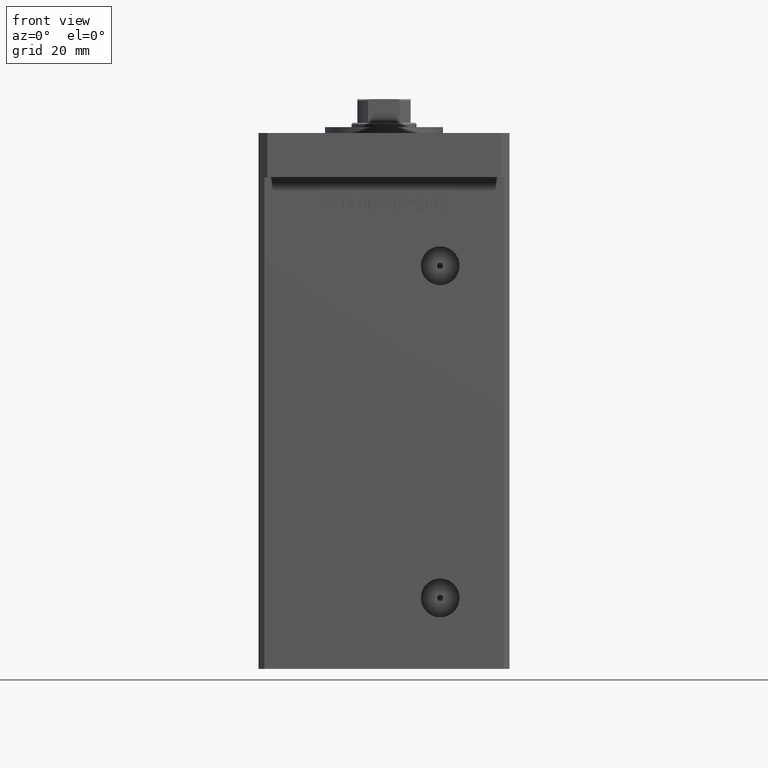
[diagram: clean part render]
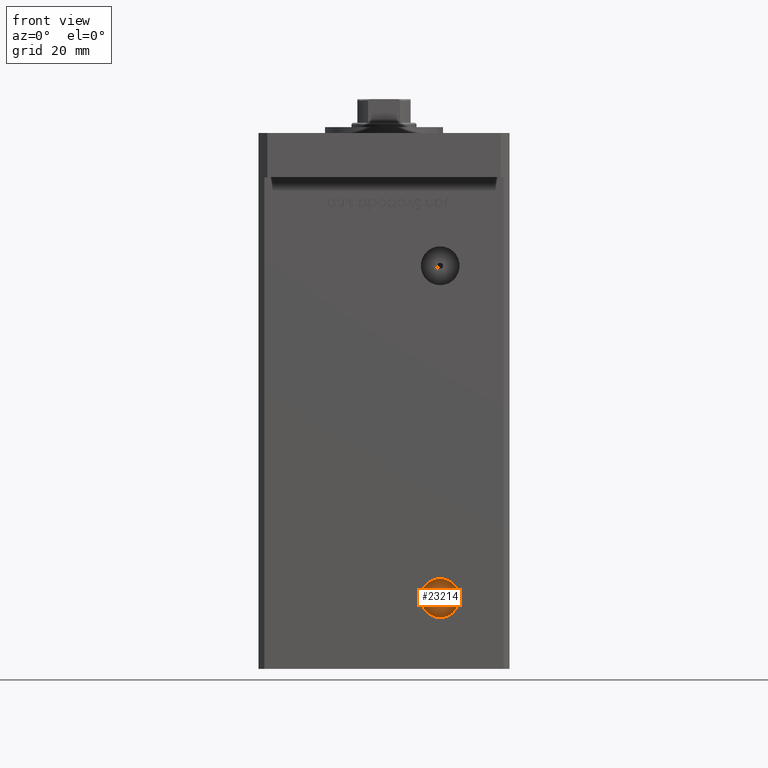
[diagram: same view with one face highlighted and labeled with its STEP entity id]
A machine part, front view. The second image highlights one B-rep face of the part: STEP entity #23214.
In plain terms, the highlighted planar face has unit normal (0, -1, 0).
Its self-contained STEP definition (entity closure, byte-faithful):
#127 = EDGE_CURVE ( 'NONE', #18848, #44645, #1581, .T. ) ;
#1581 = CIRCLE ( 'NONE', #35387, 6.579999999999998295 ) ;
#3382 = DIRECTION ( 'NONE',  ( 0.000000000000000000, -1.000000000000000000, 0.000000000000000000 ) ) ;
#3930 = DIRECTION ( 'NONE',  ( 0.000000000000000000, 0.000000000000000000, -1.000000000000000000 ) ) ;
#4687 = DIRECTION ( 'NONE',  ( 0.000000000000000000, 0.000000000000000000, -1.000000000000000000 ) ) ;
#8213 = ORIENTED_EDGE ( 'NONE', *, *, #45217, .T. ) ;
#8367 = CARTESIAN_POINT ( 'NONE',  ( 18.99999999999998934, -24.50000000000000711, 9.000000000000007105 ) ) ;
#8494 = CARTESIAN_POINT ( 'NONE',  ( 18.99999999999998934, -24.50000000000000711, 9.000000000000007105 ) ) ;
#9583 = DIRECTION ( 'NONE',  ( 0.000000000000000000, -1.000000000000000000, 0.000000000000000000 ) ) ;
#16820 = AXIS2_PLACEMENT_3D ( 'NONE', #8494, #25005, #4687 ) ;
#17711 = DIRECTION ( 'NONE',  ( 0.000000000000000000, 0.000000000000000000, -1.000000000000000000 ) ) ;
#17991 = AXIS2_PLACEMENT_3D ( 'NONE', #44596, #3382, #39996 ) ;
#18848 = VERTEX_POINT ( 'NONE', #33402 ) ;
#19044 = CARTESIAN_POINT ( 'NONE',  ( 18.99999999999998934, -24.50000000000000711, 10.00000000000000888 ) ) ;
#20359 = VERTEX_POINT ( 'NONE', #23243 ) ;
#22637 = ORIENTED_EDGE ( 'NONE', *, *, #127, .T. ) ;
#22829 = AXIS2_PLACEMENT_3D ( 'NONE', #8367, #26168, #49298 ) ;
#23214 = ADVANCED_FACE ( 'NONE', ( #27802, #52754 ), #44051, .T. ) ;
#23243 = CARTESIAN_POINT ( 'NONE',  ( 18.99999999999998934, -24.50000000000000711, 8.000000000000007105 ) ) ;
#23621 = CARTESIAN_POINT ( 'NONE',  ( 18.99999999999998934, -24.50000000000000711, 15.58000000000000718 ) ) ;
#24525 = CARTESIAN_POINT ( 'NONE',  ( 18.99999999999998934, -24.50000000000000711, 9.000000000000007105 ) ) ;
#25005 = DIRECTION ( 'NONE',  ( 0.000000000000000000, -1.000000000000000000, 0.000000000000000000 ) ) ;
#26168 = DIRECTION ( 'NONE',  ( 0.000000000000000000, -1.000000000000000000, 0.000000000000000000 ) ) ;
#27802 = FACE_BOUND ( 'NONE', #43674, .T. ) ;
#29601 = VERTEX_POINT ( 'NONE', #19044 ) ;
#33402 = CARTESIAN_POINT ( 'NONE',  ( 18.99999999999998934, -24.50000000000000711, 2.420000000000009699 ) ) ;
#33800 = ORIENTED_EDGE ( 'NONE', *, *, #40483, .F. ) ;
#35387 = AXIS2_PLACEMENT_3D ( 'NONE', #24525, #41062, #3930 ) ;
#39996 = DIRECTION ( 'NONE',  ( 0.000000000000000000, -0.000000000000000000, -1.000000000000000000 ) ) ;
#40186 = CIRCLE ( 'NONE', #16820, 6.579999999999998295 ) ;
#40483 = EDGE_CURVE ( 'NONE', #29601, #20359, #50458, .T. ) ;
#41062 = DIRECTION ( 'NONE',  ( 0.000000000000000000, -1.000000000000000000, 0.000000000000000000 ) ) ;
#43428 = CARTESIAN_POINT ( 'NONE',  ( 18.99999999999998934, -24.50000000000000711, 9.000000000000007105 ) ) ;
#43674 = EDGE_LOOP ( 'NONE', ( #46077, #33800 ) ) ;
#44051 = PLANE ( 'NONE',  #17991 ) ;
#44596 = CARTESIAN_POINT ( 'NONE',  ( 18.99999999999998934, -24.50000000000000711, 9.000000000000007105 ) ) ;
#44645 = VERTEX_POINT ( 'NONE', #23621 ) ;
#45217 = EDGE_CURVE ( 'NONE', #44645, #18848, #40186, .T. ) ;
#45307 = CIRCLE ( 'NONE', #22829, 1.000000000000000888 ) ;
#46077 = ORIENTED_EDGE ( 'NONE', *, *, #46984, .F. ) ;
#46984 = EDGE_CURVE ( 'NONE', #20359, #29601, #45307, .T. ) ;
#47350 = EDGE_LOOP ( 'NONE', ( #22637, #8213 ) ) ;
#48712 = AXIS2_PLACEMENT_3D ( 'NONE', #43428, #9583, #17711 ) ;
#49298 = DIRECTION ( 'NONE',  ( 0.000000000000000000, 0.000000000000000000, -1.000000000000000000 ) ) ;
#50458 = CIRCLE ( 'NONE', #48712, 1.000000000000000888 ) ;
#52754 = FACE_OUTER_BOUND ( 'NONE', #47350, .T. ) ;